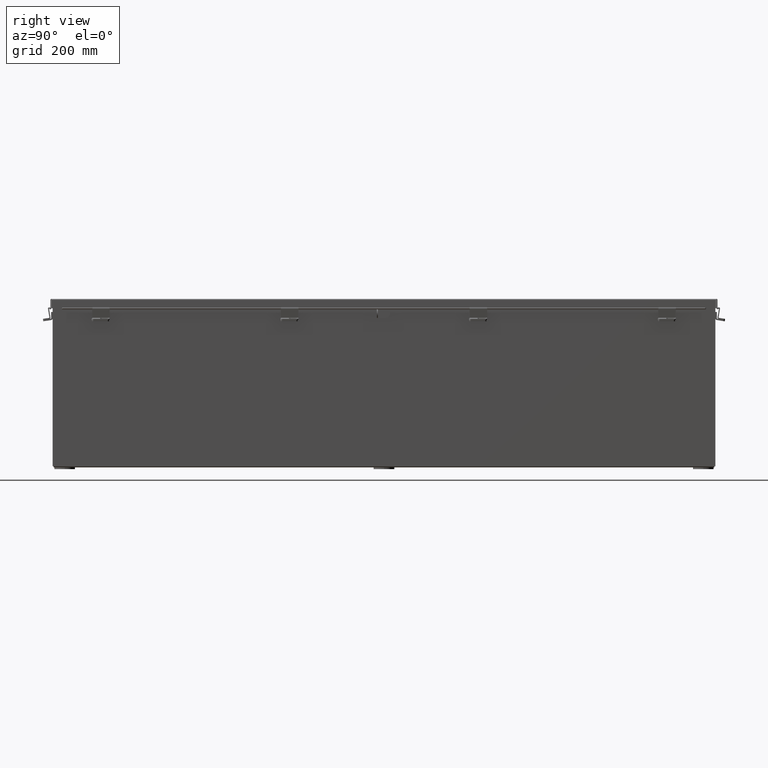
[diagram: clean part render]
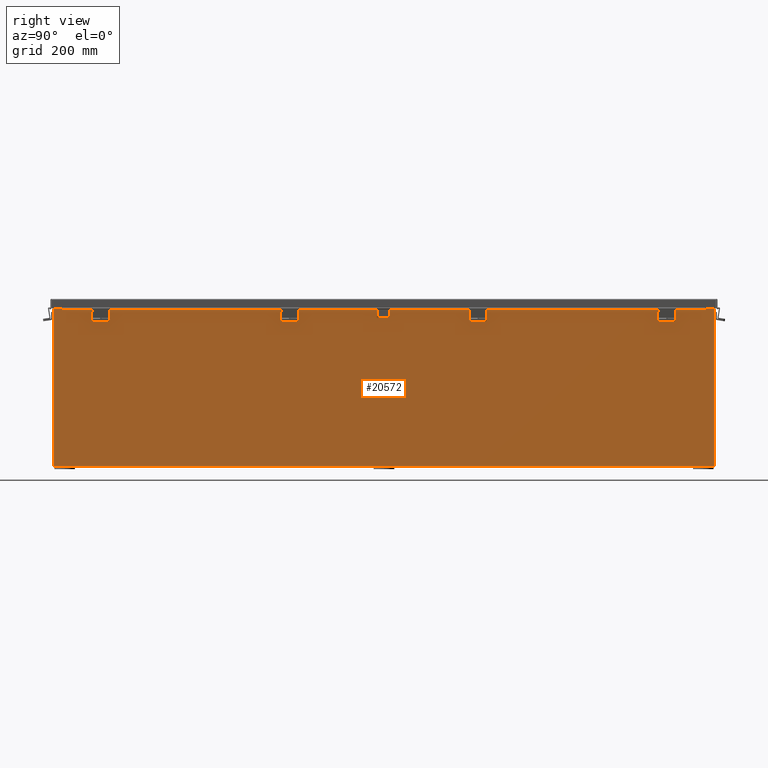
[diagram: same view with one face highlighted and labeled with its STEP entity id]
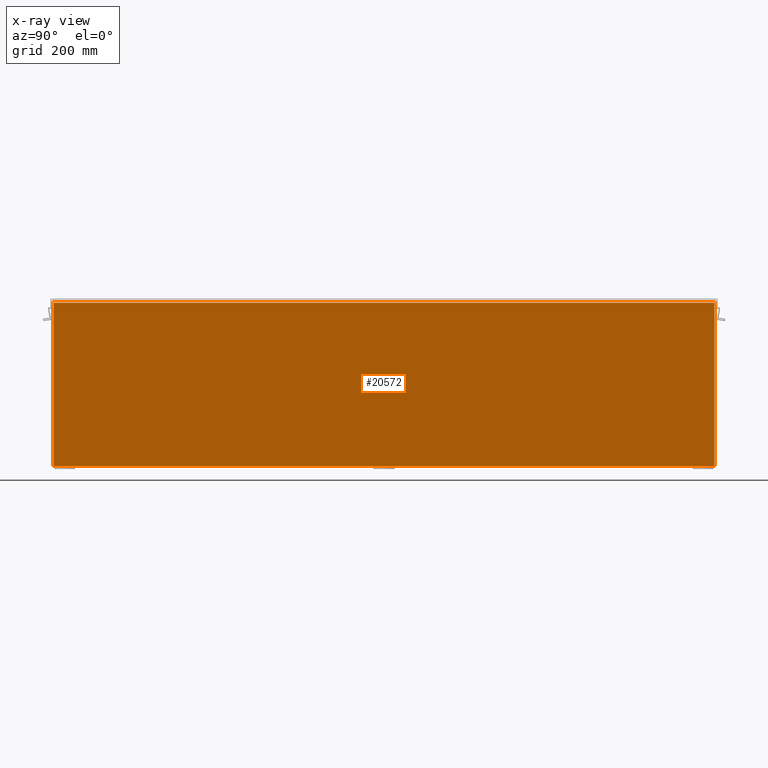
[diagram: x-ray of the same camera — body ghosted, the highlighted face saturated]
A machine part, right view. The second image highlights one B-rep face of the part: STEP entity #20572.
The next image is the same camera in x-ray: the body ghosted, the highlighted face saturated — about 0% of this face is hidden behind the body in this view.
In plain terms, the highlighted planar face has unit normal (-1, 0, 0).
Its self-contained STEP definition (entity closure, byte-faithful):
#273 = CARTESIAN_POINT ( 'NONE',  ( 5.999999999999998200, 23.92529999999999600, -1.246405647109320000E-014 ) ) ;
#4051 = DIRECTION ( 'NONE',  ( 8.001822495251853600E-032, -1.000000000000000000, 2.283647848649142500E-017 ) ) ;
#5229 = VECTOR ( 'NONE', #6234, 39.37007874015748100 ) ;
#6229 = LINE ( 'NONE', #34040, #27701 ) ;
#6234 = DIRECTION ( 'NONE',  ( -3.503965158194252100E-015, 0.0000000000000000000, -1.000000000000000000 ) ) ;
#6298 = ORIENTED_EDGE ( 'NONE', *, *, #10344, .F. ) ;
#7537 = VERTEX_POINT ( 'NONE', #31067 ) ;
#9403 = EDGE_LOOP ( 'NONE', ( #16347, #33601, #6298, #28715 ) ) ;
#9561 = CARTESIAN_POINT ( 'NONE',  ( 5.999999999999998200, -23.92529999999998900, 0.01299999999999984300 ) ) ;
#10290 = EDGE_CURVE ( 'NONE', #30450, #35165, #12846, .T. ) ;
#10344 = EDGE_CURVE ( 'NONE', #30450, #19822, #25973, .T. ) ;
#12202 = PLANE ( 'NONE',  #31113 ) ;
#12846 = LINE ( 'NONE', #273, #34258 ) ;
#14083 = EDGE_CURVE ( 'NONE', #35165, #7537, #6229, .T. ) ;
#14222 = CARTESIAN_POINT ( 'NONE',  ( 5.999999999999998200, -23.92529999999998900, 0.01299999999999929700 ) ) ;
#16167 = CARTESIAN_POINT ( 'NONE',  ( 6.000000000000040000, 23.92529999999996800, 11.83759999999999800 ) ) ;
#16347 = ORIENTED_EDGE ( 'NONE', *, *, #14083, .T. ) ;
#17704 = CARTESIAN_POINT ( 'NONE',  ( 5.999999999999998200, 0.0000000000000000000, -2.128280327564064900E-014 ) ) ;
#17828 = DIRECTION ( 'NONE',  ( 3.503965158194251300E-015, 0.0000000000000000000, 1.000000000000000000 ) ) ;
#19822 = VERTEX_POINT ( 'NONE', #14222 ) ;
#20572 = ADVANCED_FACE ( 'NONE', ( #23288 ), #12202, .F. ) ;
#21786 = EDGE_CURVE ( 'NONE', #7537, #19822, #27568, .T. ) ;
#23045 = CARTESIAN_POINT ( 'NONE',  ( 5.999999999999998200, -23.92529999999998900, -2.128280327564064900E-014 ) ) ;
#23288 = FACE_OUTER_BOUND ( 'NONE', #9403, .T. ) ;
#25837 = CARTESIAN_POINT ( 'NONE',  ( 5.999999999999998200, 23.92529999999998600, 0.01299999999999875000 ) ) ;
#25973 = LINE ( 'NONE', #9561, #31629 ) ;
#27568 = LINE ( 'NONE', #23045, #5229 ) ;
#27701 = VECTOR ( 'NONE', #31221, 39.37007874015748100 ) ;
#28715 = ORIENTED_EDGE ( 'NONE', *, *, #10290, .T. ) ;
#30450 = VERTEX_POINT ( 'NONE', #25837 ) ;
#31067 = CARTESIAN_POINT ( 'NONE',  ( 6.000000000000040000, -23.92529999999998900, 11.83759999999999800 ) ) ;
#31113 = AXIS2_PLACEMENT_3D ( 'NONE', #17704, #34587, #17828 ) ;
#31221 = DIRECTION ( 'NONE',  ( -0.0000000000000000000, -1.000000000000000000, -0.0000000000000000000 ) ) ;
#31629 = VECTOR ( 'NONE', #4051, 39.37007874015748100 ) ;
#33601 = ORIENTED_EDGE ( 'NONE', *, *, #21786, .T. ) ;
#34040 = CARTESIAN_POINT ( 'NONE',  ( 6.000000000000040000, 23.92529999999998900, 11.83759999999999800 ) ) ;
#34258 = VECTOR ( 'NONE', #34550, 39.37007874015748100 ) ;
#34550 = DIRECTION ( 'NONE',  ( 3.503965158194252100E-015, -3.688384377046581100E-016, 1.000000000000000000 ) ) ;
#34587 = DIRECTION ( 'NONE',  ( -1.000000000000000000, 0.0000000000000000000, 3.503965158194251300E-015 ) ) ;
#35165 = VERTEX_POINT ( 'NONE', #16167 ) ;